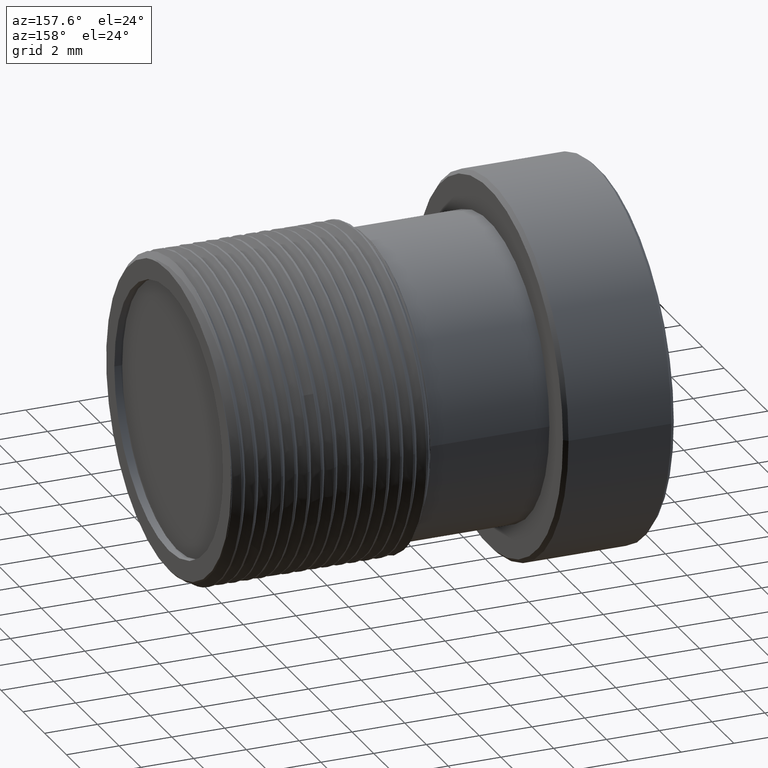
[diagram: clean part render]
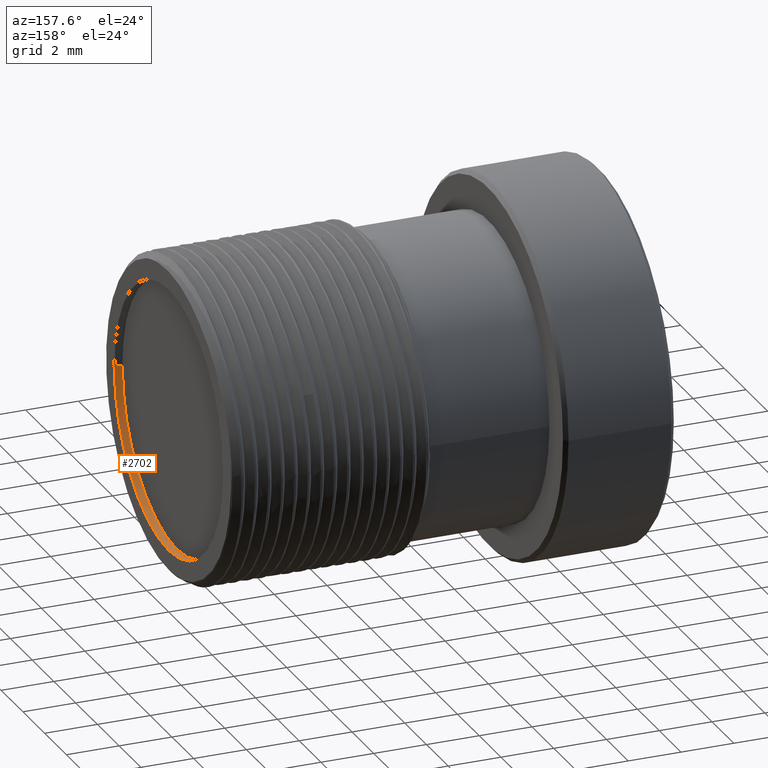
[diagram: same view with one face highlighted and labeled with its STEP entity id]
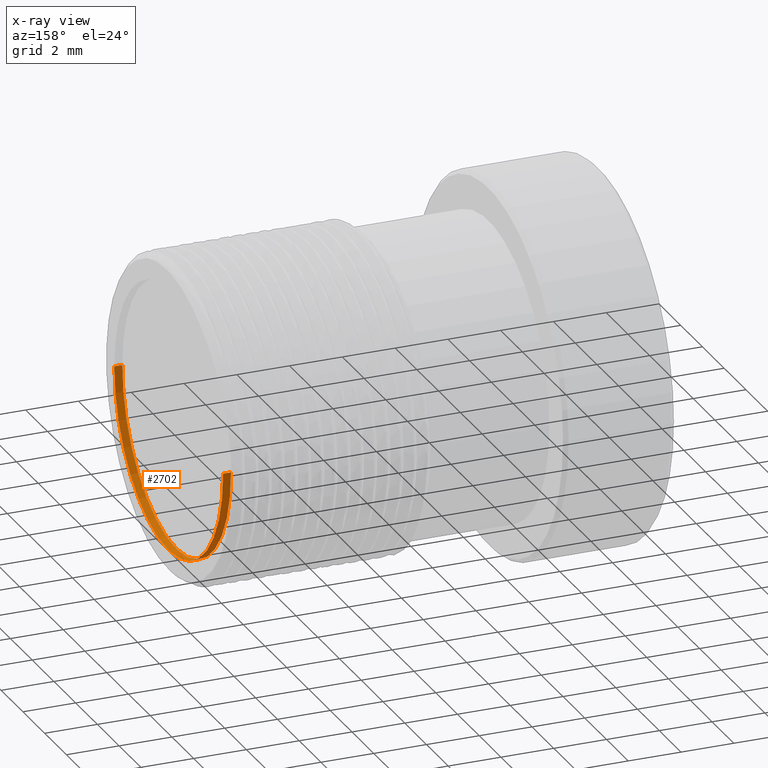
[diagram: x-ray of the same camera — body ghosted, the highlighted face saturated]
A machine part, auxiliary view. The second image highlights one B-rep face of the part: STEP entity #2702.
The next image is the same camera in x-ray: the body ghosted, the highlighted face saturated — about 0% of this face is hidden behind the body in this view.
In plain terms, the highlighted cylindrical surface (partial cylindrical patch) has radius 5 mm, axis along (-1, 0, 0).
Its self-contained STEP definition (entity closure, byte-faithful):
#1=DIRECTION('',(1.E0,0.E0,0.E0));
#2=VECTOR('',#1,3.000000000002E-1);
#3=CARTESIAN_POINT('',(-3.000000000002E-1,5.E0,0.E0));
#4=LINE('',#3,#2);
#10=DIRECTION('',(1.E0,0.E0,0.E0));
#11=VECTOR('',#10,3.000000000002E-1);
#12=CARTESIAN_POINT('',(-3.000000000002E-1,-5.E0,0.E0));
#13=LINE('',#12,#11);
#14=CARTESIAN_POINT('',(-3.000000000002E-1,0.E0,0.E0));
#15=DIRECTION('',(-1.E0,0.E0,0.E0));
#16=DIRECTION('',(0.E0,1.E0,0.E0));
#17=AXIS2_PLACEMENT_3D('',#14,#15,#16);
#24=CARTESIAN_POINT('',(0.E0,0.E0,0.E0));
#25=DIRECTION('',(-1.E0,0.E0,0.E0));
#26=DIRECTION('',(0.E0,1.E0,0.E0));
#27=AXIS2_PLACEMENT_3D('',#24,#25,#26);
#2544=CARTESIAN_POINT('',(-3.000000000002E-1,5.E0,0.E0));
#2545=CARTESIAN_POINT('',(0.E0,5.E0,0.E0));
#2546=VERTEX_POINT('',#2544);
#2547=VERTEX_POINT('',#2545);
#2566=CARTESIAN_POINT('',(-3.000000000002E-1,-5.E0,0.E0));
#2567=CARTESIAN_POINT('',(0.E0,-5.E0,0.E0));
#2568=VERTEX_POINT('',#2566);
#2569=VERTEX_POINT('',#2567);
#2690=CARTESIAN_POINT('',(8.16E-1,0.E0,0.E0));
#2691=DIRECTION('',(-1.E0,0.E0,0.E0));
#2692=DIRECTION('',(0.E0,1.E0,0.E0));
#2693=AXIS2_PLACEMENT_3D('',#2690,#2691,#2692);
#2694=CYLINDRICAL_SURFACE('',#2693,5.E0);
#2695=ORIENTED_EDGE('',*,*,#2680,.T.);
#2697=ORIENTED_EDGE('',*,*,#2696,.T.);
#2698=ORIENTED_EDGE('',*,*,#2683,.F.);
#2699=ORIENTED_EDGE('',*,*,#2670,.F.);
#2700=EDGE_LOOP('',(#2695,#2697,#2698,#2699));
#2701=FACE_OUTER_BOUND('',#2700,.F.);
#2702=ADVANCED_FACE('',(#2701),#2694,.F.);
#18=CIRCLE('',#17,5.E0);
#28=CIRCLE('',#27,5.E0);
#2670=EDGE_CURVE('',#2546,#2568,#18,.T.);
#2680=EDGE_CURVE('',#2546,#2547,#4,.T.);
#2683=EDGE_CURVE('',#2568,#2569,#13,.T.);
#2696=EDGE_CURVE('',#2547,#2569,#28,.T.);